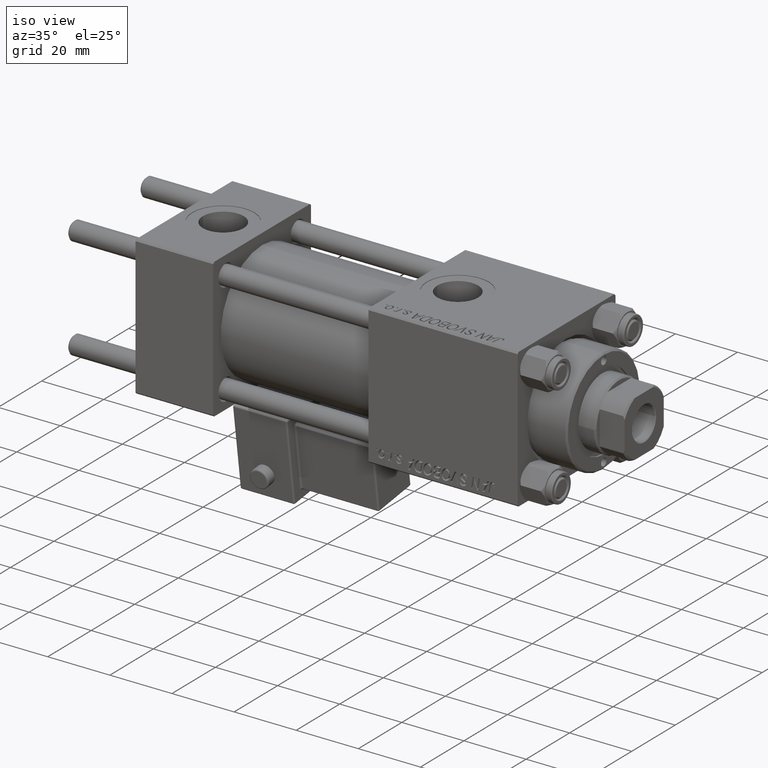
[diagram: clean part render]
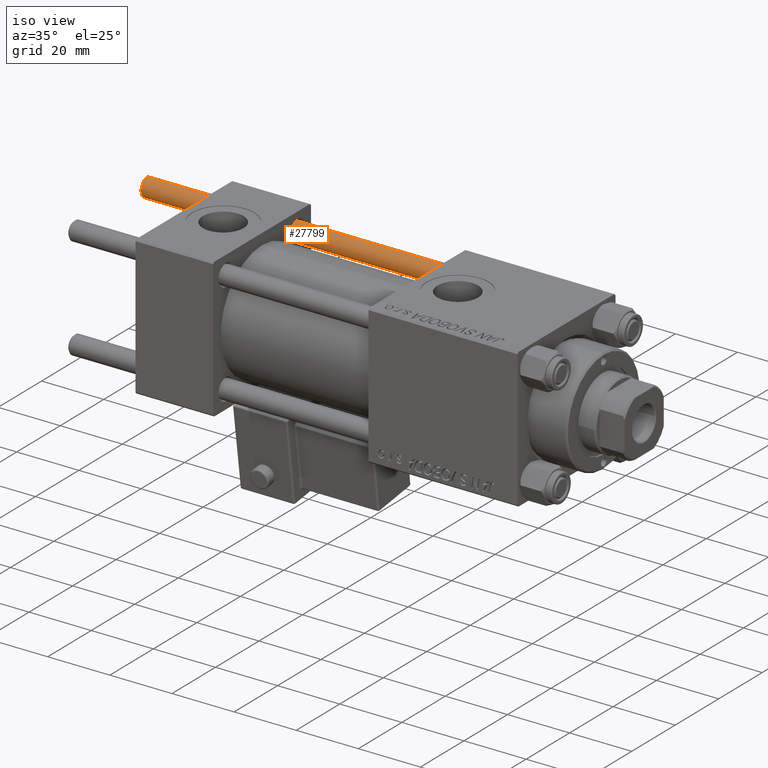
[diagram: same view with one face highlighted and labeled with its STEP entity id]
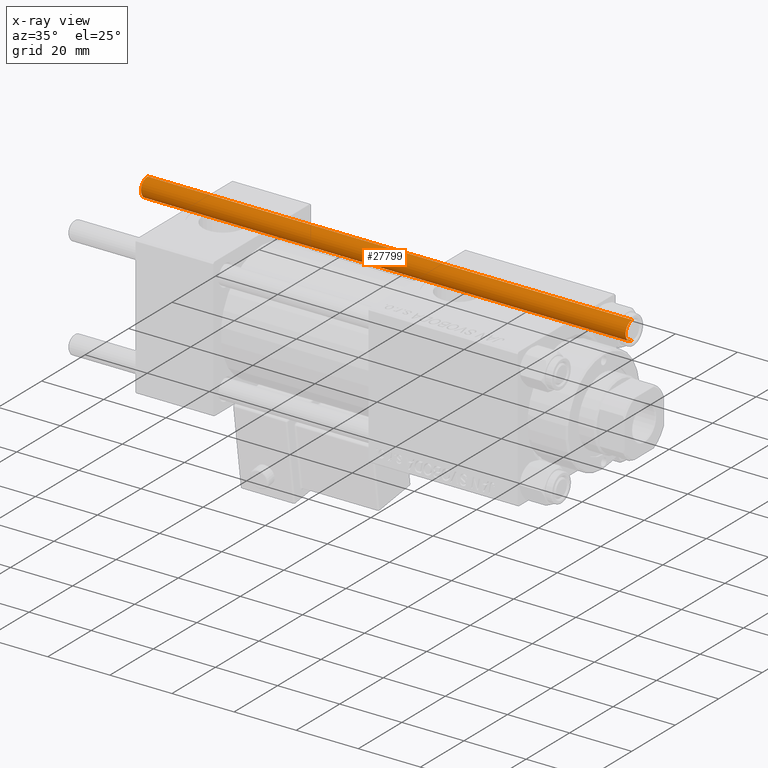
[diagram: x-ray of the same camera — body ghosted, the highlighted face saturated]
A machine part, iso view. The second image highlights one B-rep face of the part: STEP entity #27799.
The next image is the same camera in x-ray: the body ghosted, the highlighted face saturated — about 0% of this face is hidden behind the body in this view.
In plain terms, the highlighted cylindrical surface (edge-blend (fillet) strip) has radius 3 mm, axis along (-1, -0, -0).
Its self-contained STEP definition (entity closure, byte-faithful):
#2093 = EDGE_CURVE ( 'NONE', #4539, #34226, #49180, .T. ) ;
#2634 = CARTESIAN_POINT ( 'NONE',  ( 0.000000000000000000, 0.000000000000000000, 0.4999999999999726885 ) ) ;
#4539 = VERTEX_POINT ( 'NONE', #41287 ) ;
#5427 = VECTOR ( 'NONE', #47663, 1000.000000000000000 ) ;
#6842 = EDGE_LOOP ( 'NONE', ( #16340, #37351, #52312, #41400 ) ) ;
#11060 = CYLINDRICAL_SURFACE ( 'NONE', #28026, 3.000000000000000444 ) ;
#12870 = AXIS2_PLACEMENT_3D ( 'NONE', #2634, #35825, #38824 ) ;
#15651 = CARTESIAN_POINT ( 'NONE',  ( -3.000000000000000444, 0.000000000000000000, 157.0000000000000000 ) ) ;
#16340 = ORIENTED_EDGE ( 'NONE', *, *, #46445, .F. ) ;
#19022 = DIRECTION ( 'NONE',  ( 0.000000000000000000, 0.000000000000000000, -1.000000000000000000 ) ) ;
#23488 = VECTOR ( 'NONE', #41509, 1000.000000000000000 ) ;
#24291 = VERTEX_POINT ( 'NONE', #29967 ) ;
#25391 = CARTESIAN_POINT ( 'NONE',  ( 3.000000000000000444, 3.673940397442060361E-16, 157.0000000000000000 ) ) ;
#25554 = VERTEX_POINT ( 'NONE', #48217 ) ;
#27799 = ADVANCED_FACE ( 'NONE', ( #43824 ), #11060, .T. ) ;
#27950 = DIRECTION ( 'NONE',  ( -1.000000000000000000, 0.000000000000000000, 0.000000000000000000 ) ) ;
#28026 = AXIS2_PLACEMENT_3D ( 'NONE', #48059, #40102, #27950 ) ;
#29017 = EDGE_CURVE ( 'NONE', #24291, #4539, #48452, .T. ) ;
#29967 = CARTESIAN_POINT ( 'NONE',  ( -3.000000000000000444, 0.000000000000000000, 156.5000000000000284 ) ) ;
#29991 = AXIS2_PLACEMENT_3D ( 'NONE', #38594, #19022, #43351 ) ;
#34226 = VERTEX_POINT ( 'NONE', #36382 ) ;
#35825 = DIRECTION ( 'NONE',  ( -0.000000000000000000, -0.000000000000000000, 1.000000000000000000 ) ) ;
#35902 = EDGE_CURVE ( 'NONE', #25554, #24291, #50274, .T. ) ;
#36382 = CARTESIAN_POINT ( 'NONE',  ( 3.000000000000000444, 3.673940397442060361E-16, 0.4999999999999726885 ) ) ;
#37351 = ORIENTED_EDGE ( 'NONE', *, *, #35902, .T. ) ;
#38594 = CARTESIAN_POINT ( 'NONE',  ( 0.000000000000000000, 0.000000000000000000, 156.5000000000000284 ) ) ;
#38824 = DIRECTION ( 'NONE',  ( 1.000000000000000000, 0.000000000000000000, 0.000000000000000000 ) ) ;
#40102 = DIRECTION ( 'NONE',  ( -0.000000000000000000, -0.000000000000000000, -1.000000000000000000 ) ) ;
#41287 = CARTESIAN_POINT ( 'NONE',  ( -3.000000000000000444, 0.000000000000000000, 0.4999999999999726885 ) ) ;
#41400 = ORIENTED_EDGE ( 'NONE', *, *, #2093, .T. ) ;
#41509 = DIRECTION ( 'NONE',  ( -0.000000000000000000, -0.000000000000000000, -1.000000000000000000 ) ) ;
#43351 = DIRECTION ( 'NONE',  ( 1.000000000000000000, 0.000000000000000000, 0.000000000000000000 ) ) ;
#43824 = FACE_OUTER_BOUND ( 'NONE', #6842, .T. ) ;
#46274 = LINE ( 'NONE', #25391, #23488 ) ;
#46445 = EDGE_CURVE ( 'NONE', #25554, #34226, #46274, .T. ) ;
#47663 = DIRECTION ( 'NONE',  ( -0.000000000000000000, -0.000000000000000000, -1.000000000000000000 ) ) ;
#48059 = CARTESIAN_POINT ( 'NONE',  ( 0.000000000000000000, 0.000000000000000000, 157.0000000000000000 ) ) ;
#48217 = CARTESIAN_POINT ( 'NONE',  ( 3.000000000000000444, 3.673940397442060361E-16, 156.5000000000000284 ) ) ;
#48452 = LINE ( 'NONE', #15651, #5427 ) ;
#49180 = CIRCLE ( 'NONE', #12870, 3.000000000000000444 ) ;
#50274 = CIRCLE ( 'NONE', #29991, 3.000000000000000444 ) ;
#52312 = ORIENTED_EDGE ( 'NONE', *, *, #29017, .T. ) ;